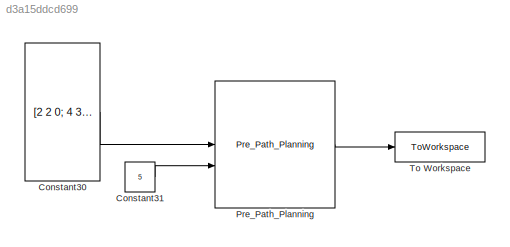
MODEL slx_d3a15ddcd699
KIND model
CONFIG AbsTol = auto
CONFIG EnableMultiTasking = off
CONFIG FixedStep = auto
CONFIG MaxStep = auto
CONFIG MinStep = auto
CONFIG RelTol = 1e-3
CONFIG SampleTimeConstraint = Unconstrained
CONFIG SolverName = VariableStepAuto
CONFIG StartTime = 0.0
CONFIG StopFcn = PreSample_Print
CONFIG StopTime = 10.0
BLOCK [Constant] Constant30
  Value = [2 2 0; 4 3 0; 7 2 0; 8 0 0; 10 -2 0; 12 0 0; 15 -1 0; 16 -3 0; 13 -4 0; 13 -1 0]
BLOCK [Constant] Constant31
  OutDataTypeStr = int32
  Value = 5
BLOCK [Reference] Pre_Path_Planning  REF=Pathfinding_lib/Pre_Path_Planning
  SourceBlock = Pathfinding_lib/Pre_Path_Planning
  SourceType = SubSystem
BLOCK [ToWorkspace] To Workspace
  FixptAsFi = on
  MaxDataPoints = inf
  SampleTime = 10
  VariableName = PreSample
LINE Constant30:1 -> Pre_Path_Planning:1
LINE Constant31:1 -> Pre_Path_Planning:2
LINE Pre_Path_Planning:1 -> To Workspace:1
